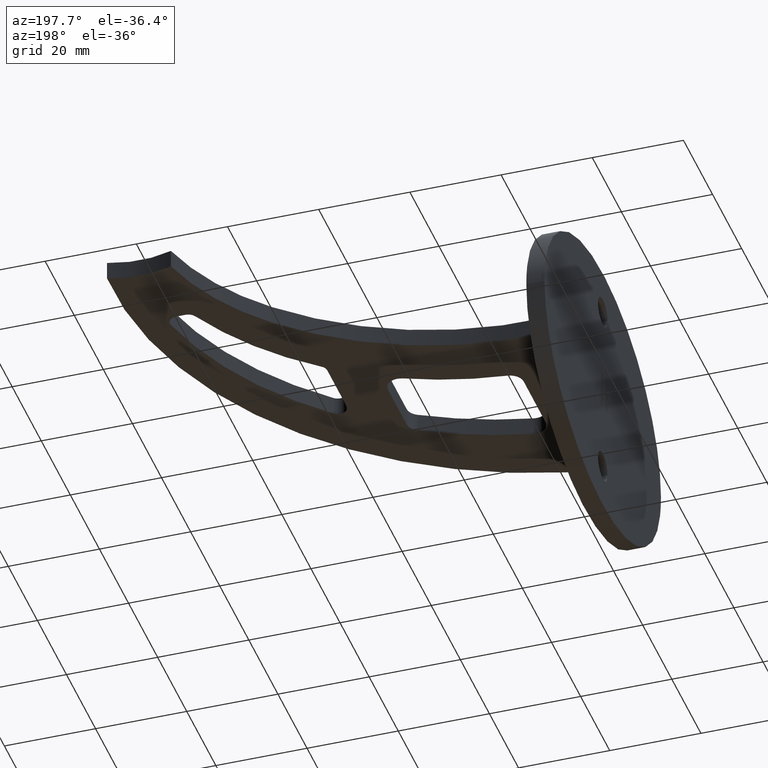
[diagram: clean part render]
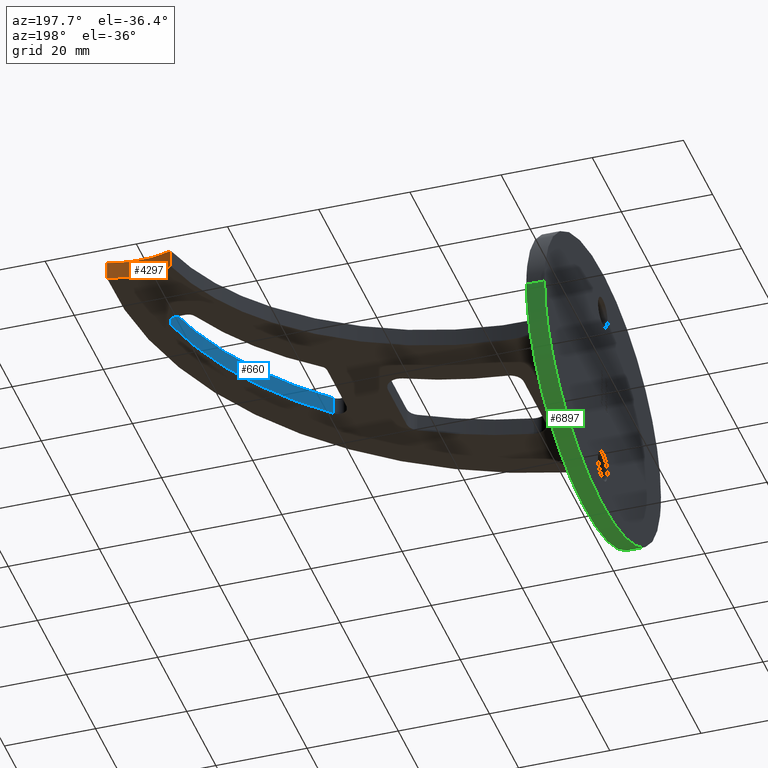
[diagram: same view with three faces highlighted in distinct colors, each labeled with its STEP entity id]
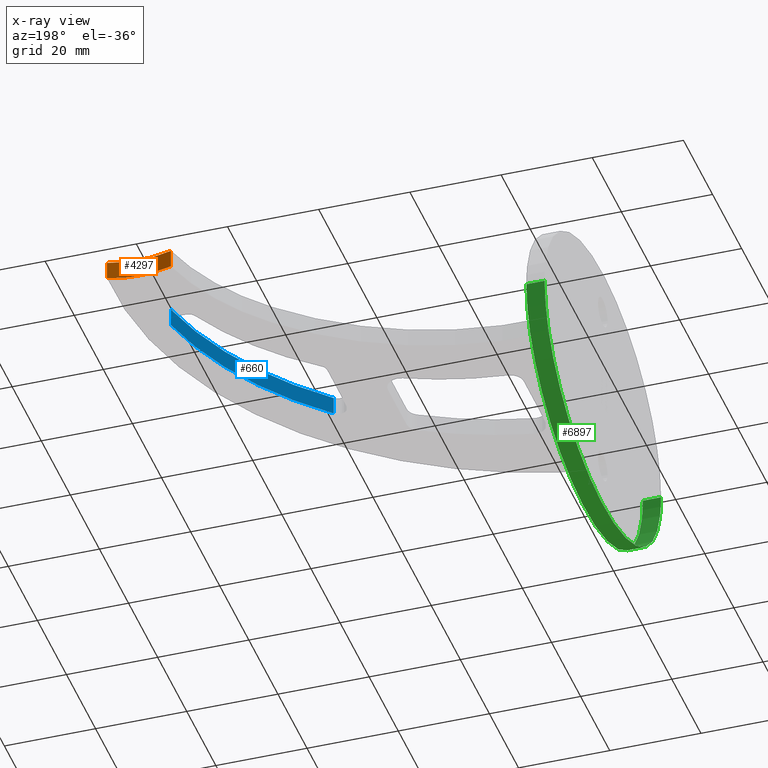
[diagram: x-ray of the same camera — body ghosted, the three highlighted faces saturated]
A machine part, auxiliary view with three faces highlighted in distinct colors.
The next image is the same camera in x-ray (body ghosted, the three faces saturated) — at least one of them is partly hidden behind the body in this view.
Their STEP definitions:

[orange] entity #4297 — the highlighted cylindrical surface (partial cylindrical patch) has radius 21.2 mm, axis along (-0, -0, -1).
#187 = CIRCLE ( 'NONE', #260, 21.19999999999999574 ) ;
#260 = AXIS2_PLACEMENT_3D ( 'NONE', #10851, #5591, #3865 ) ;
#370 = DIRECTION ( 'NONE',  ( -0.000000000000000000, -0.000000000000000000, -1.000000000000000000 ) ) ;
#508 = EDGE_CURVE ( 'NONE', #12131, #1824, #10237, .T. ) ;
#945 = LINE ( 'NONE', #10062, #1699 ) ;
#995 = DIRECTION ( 'NONE',  ( -0.000000000000000000, -0.000000000000000000, -1.000000000000000000 ) ) ;
#1224 = CYLINDRICAL_SURFACE ( 'NONE', #6162, 21.20000000000000284 ) ;
#1481 = EDGE_CURVE ( 'NONE', #10685, #12131, #187, .T. ) ;
#1659 = CARTESIAN_POINT ( 'NONE',  ( 74.99999999999998579, 91.20000000000000284, -2.000000000000000000 ) ) ;
#1699 = VECTOR ( 'NONE', #370, 1000.000000000000000 ) ;
#1824 = VERTEX_POINT ( 'NONE', #5211 ) ;
#2311 = EDGE_CURVE ( 'NONE', #10685, #4283, #945, .T. ) ;
#2731 = CIRCLE ( 'NONE', #10389, 21.19999999999999574 ) ;
#3584 = ORIENTED_EDGE ( 'NONE', *, *, #5686, .F. ) ;
#3865 = DIRECTION ( 'NONE',  ( 1.000000000000000000, 0.000000000000000000, 0.000000000000000000 ) ) ;
#4283 = VERTEX_POINT ( 'NONE', #8225 ) ;
#4297 = ADVANCED_FACE ( 'NONE', ( #8058 ), #1224, .F. ) ;
#4334 = DIRECTION ( 'NONE',  ( -1.000000000000000000, 0.000000000000000000, 0.000000000000000000 ) ) ;
#4564 = DIRECTION ( 'NONE',  ( 1.000000000000000000, 0.000000000000000000, 0.000000000000000000 ) ) ;
#5211 = CARTESIAN_POINT ( 'NONE',  ( 81.99999999999997158, 71.18900302333739205, -2.000000000000000000 ) ) ;
#5303 = CARTESIAN_POINT ( 'NONE',  ( 74.99999999999998579, 91.20000000000000284, 2.000000000000000000 ) ) ;
#5591 = DIRECTION ( 'NONE',  ( -0.000000000000000000, 0.000000000000000000, 1.000000000000000000 ) ) ;
#5600 = ORIENTED_EDGE ( 'NONE', *, *, #508, .T. ) ;
#5686 = EDGE_CURVE ( 'NONE', #4283, #1824, #2731, .T. ) ;
#6162 = AXIS2_PLACEMENT_3D ( 'NONE', #5303, #11150, #4334 ) ;
#7110 = CARTESIAN_POINT ( 'NONE',  ( 81.99999999999997158, 71.18900302333739205, 2.000000000000000000 ) ) ;
#7665 = CARTESIAN_POINT ( 'NONE',  ( 81.99999999999997158, 71.18900302333739205, 2.000000000000000000 ) ) ;
#7716 = ORIENTED_EDGE ( 'NONE', *, *, #1481, .T. ) ;
#8051 = ORIENTED_EDGE ( 'NONE', *, *, #2311, .F. ) ;
#8058 = FACE_OUTER_BOUND ( 'NONE', #11292, .T. ) ;
#8225 = CARTESIAN_POINT ( 'NONE',  ( 68.00000000000000000, 71.18900302333739205, -2.000000000000000000 ) ) ;
#10062 = CARTESIAN_POINT ( 'NONE',  ( 68.00000000000000000, 71.18900302333739205, 2.000000000000000000 ) ) ;
#10237 = LINE ( 'NONE', #7665, #12217 ) ;
#10253 = CARTESIAN_POINT ( 'NONE',  ( 68.00000000000000000, 71.18900302333739205, 2.000000000000000000 ) ) ;
#10389 = AXIS2_PLACEMENT_3D ( 'NONE', #1659, #11342, #4564 ) ;
#10685 = VERTEX_POINT ( 'NONE', #10253 ) ;
#10851 = CARTESIAN_POINT ( 'NONE',  ( 74.99999999999998579, 91.20000000000000284, 2.000000000000000000 ) ) ;
#11150 = DIRECTION ( 'NONE',  ( -0.000000000000000000, -0.000000000000000000, -1.000000000000000000 ) ) ;
#11292 = EDGE_LOOP ( 'NONE', ( #3584, #8051, #7716, #5600 ) ) ;
#11342 = DIRECTION ( 'NONE',  ( -0.000000000000000000, 0.000000000000000000, 1.000000000000000000 ) ) ;
#12131 = VERTEX_POINT ( 'NONE', #7110 ) ;
#12217 = VECTOR ( 'NONE', #995, 1000.000000000000000 ) ;

[blue] entity #660 — the highlighted cylindrical surface (partial cylindrical patch) has radius 78.5 mm, axis along (-0, -0, -1).
#314 = ORIENTED_EDGE ( 'NONE', *, *, #9020, .F. ) ;
#421 = DIRECTION ( 'NONE',  ( 1.000000000000000000, 0.000000000000000000, 0.000000000000000000 ) ) ;
#429 = ORIENTED_EDGE ( 'NONE', *, *, #7266, .T. ) ;
#660 = ADVANCED_FACE ( 'NONE', ( #1128 ), #971, .F. ) ;
#971 = CYLINDRICAL_SURFACE ( 'NONE', #11520, 78.49999999999998579 ) ;
#1128 = FACE_OUTER_BOUND ( 'NONE', #12201, .T. ) ;
#1657 = DIRECTION ( 'NONE',  ( 1.000000000000000000, 0.000000000000000000, 0.000000000000000000 ) ) ;
#1722 = VERTEX_POINT ( 'NONE', #2325 ) ;
#1909 = ORIENTED_EDGE ( 'NONE', *, *, #6341, .T. ) ;
#2325 = CARTESIAN_POINT ( 'NONE',  ( 74.30506770924239390, 51.56029924411871690, -2.000000000000000000 ) ) ;
#2996 = AXIS2_PLACEMENT_3D ( 'NONE', #10279, #3552, #1657 ) ;
#3088 = EDGE_CURVE ( 'NONE', #6371, #9412, #7323, .T. ) ;
#3214 = CARTESIAN_POINT ( 'NONE',  ( -2.274320155918185815, 68.81855391245915143, 2.000000000000000000 ) ) ;
#3325 = VECTOR ( 'NONE', #8952, 1000.000000000000000 ) ;
#3354 = AXIS2_PLACEMENT_3D ( 'NONE', #10152, #4354, #421 ) ;
#3533 = CARTESIAN_POINT ( 'NONE',  ( 74.30506770924239390, 51.56029924411871690, 2.000000000000000000 ) ) ;
#3552 = DIRECTION ( 'NONE',  ( -0.000000000000000000, 0.000000000000000000, 1.000000000000000000 ) ) ;
#3723 = VERTEX_POINT ( 'NONE', #9694 ) ;
#3947 = VECTOR ( 'NONE', #12254, 1000.000000000000000 ) ;
#4354 = DIRECTION ( 'NONE',  ( -0.000000000000000000, 0.000000000000000000, 1.000000000000000000 ) ) ;
#4979 = LINE ( 'NONE', #9978, #3325 ) ;
#6341 = EDGE_CURVE ( 'NONE', #9412, #1722, #9254, .T. ) ;
#6371 = VERTEX_POINT ( 'NONE', #9199 ) ;
#7266 = EDGE_CURVE ( 'NONE', #3723, #6371, #4979, .T. ) ;
#7323 = CIRCLE ( 'NONE', #2996, 78.50000000000000000 ) ;
#7692 = CIRCLE ( 'NONE', #3354, 78.49999999999998579 ) ;
#7948 = DIRECTION ( 'NONE',  ( -1.000000000000000000, 0.000000000000000000, 0.000000000000000000 ) ) ;
#8568 = CARTESIAN_POINT ( 'NONE',  ( 74.30506770924240811, 51.56029924411871690, 2.000000000000000000 ) ) ;
#8927 = DIRECTION ( 'NONE',  ( -0.000000000000000000, -0.000000000000000000, -1.000000000000000000 ) ) ;
#8952 = DIRECTION ( 'NONE',  ( 0.000000000000000000, 0.000000000000000000, 1.000000000000000000 ) ) ;
#9020 = EDGE_CURVE ( 'NONE', #3723, #1722, #7692, .T. ) ;
#9125 = ORIENTED_EDGE ( 'NONE', *, *, #3088, .T. ) ;
#9199 = CARTESIAN_POINT ( 'NONE',  ( 51.36664889296192626, 11.50453783002879149, 2.000000000000000000 ) ) ;
#9254 = LINE ( 'NONE', #3533, #3947 ) ;
#9412 = VERTEX_POINT ( 'NONE', #8568 ) ;
#9694 = CARTESIAN_POINT ( 'NONE',  ( 51.36664889296191205, 11.50453783002880570, -2.000000000000000000 ) ) ;
#9978 = CARTESIAN_POINT ( 'NONE',  ( 51.36664889296191205, 11.50453783002880570, 2.000000000000000000 ) ) ;
#10152 = CARTESIAN_POINT ( 'NONE',  ( -2.274320155918185815, 68.81855391245915143, -2.000000000000000000 ) ) ;
#10279 = CARTESIAN_POINT ( 'NONE',  ( -2.274320155918185815, 68.81855391245915143, 2.000000000000000000 ) ) ;
#11520 = AXIS2_PLACEMENT_3D ( 'NONE', #3214, #8927, #7948 ) ;
#12201 = EDGE_LOOP ( 'NONE', ( #9125, #1909, #314, #429 ) ) ;
#12254 = DIRECTION ( 'NONE',  ( -0.000000000000000000, -0.000000000000000000, -1.000000000000000000 ) ) ;

[green] entity #6897 — the highlighted face is a freeform B-spline surface patch.
#36 = ORIENTED_EDGE ( 'NONE', *, *, #10176, .T. ) ;
#459 =( BOUNDED_SURFACE ( )  B_SPLINE_SURFACE ( 3, 1, ( 
 ( #12194, #8461 ),
 ( #3521, #10405 ),
 ( #4604, #6390 ),
 ( #7316, #1496 ) ),
 .UNSPECIFIED., .F., .F., .F. ) 
 B_SPLINE_SURFACE_WITH_KNOTS ( ( 4, 4 ),
 ( 2, 2 ),
 ( 0.000000000000000000, 1.000000000000000000 ),
 ( 0.000000000000000000, 1.000000000000000000 ),
 .UNSPECIFIED. ) 
 GEOMETRIC_REPRESENTATION_ITEM ( )  RATIONAL_B_SPLINE_SURFACE ( (
 ( 1.000000000000000000, 1.000000000000000000),
 ( 0.3333333333333333703, 0.3333333333333333703),
 ( 0.3333333333333333703, 0.3333333333333333703),
 ( 1.000000000000000000, 1.000000000000000000) ) ) 
 REPRESENTATION_ITEM ( '' )  SURFACE ( )  );
#664 = CARTESIAN_POINT ( 'NONE',  ( -4.000000000003197442, -39.99999999999973710, -3.673940397442059178E-15 ) ) ;
#1346 = ORIENTED_EDGE ( 'NONE', *, *, #6620, .T. ) ;
#1434 = CARTESIAN_POINT ( 'NONE',  ( -4.000000000003197442, -39.99999999999972999, -60.00000000000000711 ) ) ;
#1496 = CARTESIAN_POINT ( 'NONE',  ( -3.197095366225255475E-12, -40.00000000000005684, -3.673940397442059178E-15 ) ) ;
#2244 = CARTESIAN_POINT ( 'NONE',  ( 3.197442310920455683E-12, 40.00000000000005684, 0.000000000000000000 ) ) ;
#3130 =( BOUNDED_CURVE ( )  B_SPLINE_CURVE ( 3, ( #7754, #4781, #5766, #11619 ),
 .UNSPECIFIED., .F., .F. ) 
 B_SPLINE_CURVE_WITH_KNOTS ( ( 4, 4 ),
 ( 0.000000000000000000, 3.141592653589793116 ),
 .UNSPECIFIED. ) 
 CURVE ( )  GEOMETRIC_REPRESENTATION_ITEM ( )  RATIONAL_B_SPLINE_CURVE ( ( 1.000000000000000000, 0.3333333333333333703, 0.3333333333333333703, 1.000000000000000000 ) ) 
 REPRESENTATION_ITEM ( '' )  );
#3151 = VECTOR ( 'NONE', #6999, 1000.000000000000000 ) ;
#3323 = ORIENTED_EDGE ( 'NONE', *, *, #4737, .F. ) ;
#3521 = CARTESIAN_POINT ( 'NONE',  ( -3.999999999996802558, 40.00000000000037659, -59.99999999999999289 ) ) ;
#3815 = EDGE_LOOP ( 'NONE', ( #3323, #5877, #36, #1346 ) ) ;
#4218 = VERTEX_POINT ( 'NONE', #2244 ) ;
#4345 = CARTESIAN_POINT ( 'NONE',  ( -3.999999999996803446, 40.00000000000037659, -60.00000000000000711 ) ) ;
#4395 = FACE_OUTER_BOUND ( 'NONE', #3815, .T. ) ;
#4536 = CARTESIAN_POINT ( 'NONE',  ( -3.197442310920455683E-12, -40.00000000000005684, -3.673940397442059178E-15 ) ) ;
#4604 = CARTESIAN_POINT ( 'NONE',  ( -4.000000000003197442, -39.99999999999972999, -59.99999999999999289 ) ) ;
#4737 = EDGE_CURVE ( 'NONE', #11922, #8695, #9734, .T. ) ;
#4781 = CARTESIAN_POINT ( 'NONE',  ( 3.197442310920456087E-12, 40.00000000000005684, -60.00000000000000711 ) ) ;
#5077 = DIRECTION ( 'NONE',  ( 1.000000000000000000, -7.993605777301128353E-14, -0.000000000000000000 ) ) ;
#5227 = CARTESIAN_POINT ( 'NONE',  ( -4.000000000003197442, -39.99999999999973710, -3.673940397442059178E-15 ) ) ;
#5766 = CARTESIAN_POINT ( 'NONE',  ( -3.197442310920455279E-12, -40.00000000000004974, -60.00000000000000711 ) ) ;
#5869 = CARTESIAN_POINT ( 'NONE',  ( -3.999999999996803002, 40.00000000000037659, 0.000000000000000000 ) ) ;
#5877 = ORIENTED_EDGE ( 'NONE', *, *, #7395, .F. ) ;
#6390 = CARTESIAN_POINT ( 'NONE',  ( -3.197312206659752172E-12, -40.00000000000004974, -59.99999999999999289 ) ) ;
#6483 =( BOUNDED_CURVE ( )  B_SPLINE_CURVE ( 3, ( #8151, #4345, #1434, #5227 ),
 .UNSPECIFIED., .F., .F. ) 
 B_SPLINE_CURVE_WITH_KNOTS ( ( 4, 4 ),
 ( 0.000000000000000000, 3.141592653589793116 ),
 .UNSPECIFIED. ) 
 CURVE ( )  GEOMETRIC_REPRESENTATION_ITEM ( )  RATIONAL_B_SPLINE_CURVE ( ( 1.000000000000000000, 0.3333333333333333703, 0.3333333333333333703, 1.000000000000000000 ) ) 
 REPRESENTATION_ITEM ( '' )  );
#6620 = EDGE_CURVE ( 'NONE', #4218, #8695, #3130, .T. ) ;
#6784 = LINE ( 'NONE', #5869, #3151 ) ;
#6857 = CARTESIAN_POINT ( 'NONE',  ( -4.000000000003197442, -39.99999999999973710, -3.673940397442059178E-15 ) ) ;
#6897 = ADVANCED_FACE ( 'NONE', ( #4395 ), #459, .F. ) ;
#6999 = DIRECTION ( 'NONE',  ( 1.000000000000000000, -7.993605777301128353E-14, -0.000000000000000000 ) ) ;
#7316 = CARTESIAN_POINT ( 'NONE',  ( -4.000000000003197442, -39.99999999999973710, -3.673940397442059178E-15 ) ) ;
#7395 = EDGE_CURVE ( 'NONE', #12400, #11922, #6483, .T. ) ;
#7754 = CARTESIAN_POINT ( 'NONE',  ( 3.197442310920455683E-12, 40.00000000000005684, 0.000000000000000000 ) ) ;
#8052 = VECTOR ( 'NONE', #5077, 1000.000000000000000 ) ;
#8151 = CARTESIAN_POINT ( 'NONE',  ( -3.999999999996803002, 40.00000000000037659, 0.000000000000000000 ) ) ;
#8461 = CARTESIAN_POINT ( 'NONE',  ( 3.197095366225255475E-12, 40.00000000000005684, 0.000000000000000000 ) ) ;
#8695 = VERTEX_POINT ( 'NONE', #4536 ) ;
#9133 = CARTESIAN_POINT ( 'NONE',  ( -3.999999999996803002, 40.00000000000037659, 0.000000000000000000 ) ) ;
#9734 = LINE ( 'NONE', #6857, #8052 ) ;
#10176 = EDGE_CURVE ( 'NONE', #12400, #4218, #6784, .T. ) ;
#10405 = CARTESIAN_POINT ( 'NONE',  ( 3.197312206659752172E-12, 40.00000000000005684, -59.99999999999999289 ) ) ;
#11619 = CARTESIAN_POINT ( 'NONE',  ( -3.197442310920455683E-12, -40.00000000000005684, -3.673940397442059178E-15 ) ) ;
#11922 = VERTEX_POINT ( 'NONE', #664 ) ;
#12194 = CARTESIAN_POINT ( 'NONE',  ( -3.999999999996803002, 40.00000000000037659, 0.000000000000000000 ) ) ;
#12400 = VERTEX_POINT ( 'NONE', #9133 ) ;